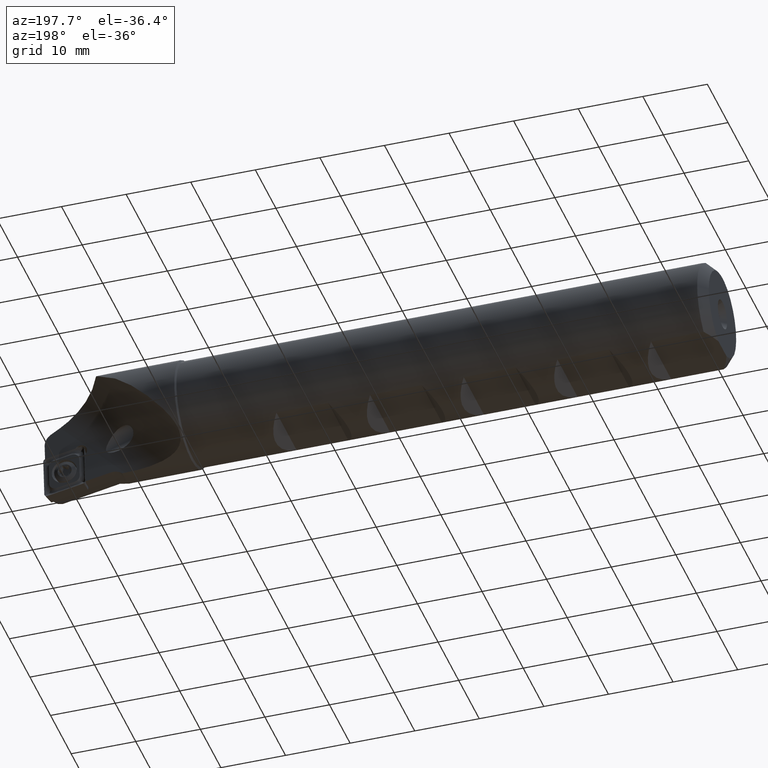
[diagram: clean part render]
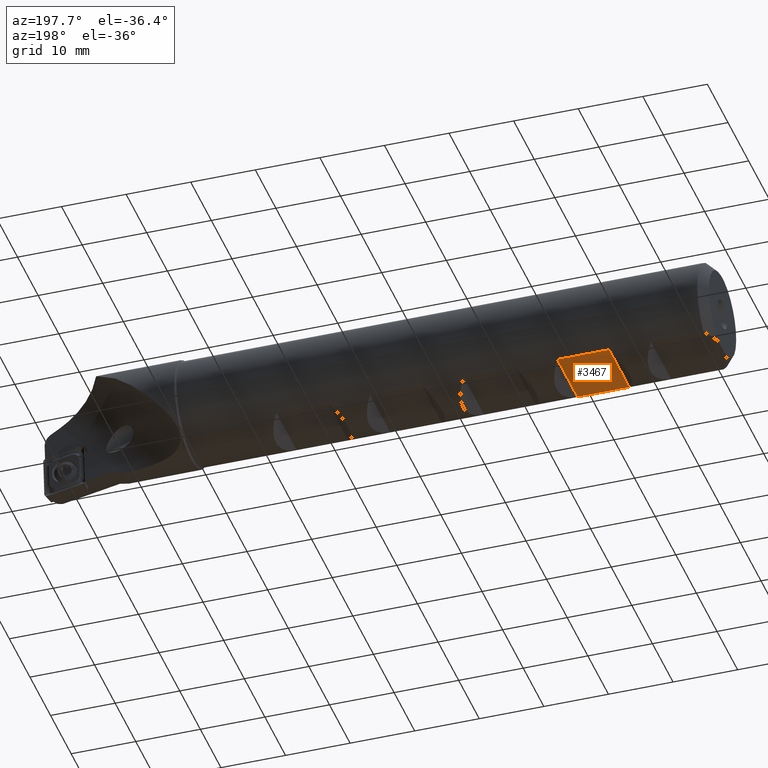
[diagram: same view with one face highlighted and labeled with its STEP entity id]
A machine part, auxiliary view. The second image highlights one B-rep face of the part: STEP entity #3467.
In plain terms, the highlighted planar face has unit normal (-0, 0, 1).
Its self-contained STEP definition (entity closure, byte-faithful):
#48 = ORIENTED_EDGE ( 'NONE', *, *, #1575, .T. ) ;
#260 = VECTOR ( 'NONE', #2888, 1000.000000000000000 ) ;
#298 = VERTEX_POINT ( 'NONE', #754 ) ;
#323 = AXIS2_PLACEMENT_3D ( 'NONE', #2296, #1727, #1995 ) ;
#391 = DIRECTION ( 'NONE',  ( -1.000000000000000000, -8.847089727481710000E-017, -5.551115123125779000E-017 ) ) ;
#659 = ORIENTED_EDGE ( 'NONE', *, *, #3224, .F. ) ;
#662 = VERTEX_POINT ( 'NONE', #3597 ) ;
#746 = EDGE_LOOP ( 'NONE', ( #659, #3399, #48, #1215 ) ) ;
#754 = CARTESIAN_POINT ( 'NONE',  ( 16.00000000000000700, 4.891942354525451900, -6.330000000000003600 ) ) ;
#869 = VECTOR ( 'NONE', #1548, 1000.000000000000000 ) ;
#941 = CARTESIAN_POINT ( 'NONE',  ( -3.175455607189916900, -4.891942354525453700, -6.329999999999999200 ) ) ;
#1020 = CARTESIAN_POINT ( 'NONE',  ( -3.175455607189903200, 4.891942354525449200, -6.330000000000004500 ) ) ;
#1165 = EDGE_CURVE ( 'NONE', #1286, #662, #1659, .T. ) ;
#1215 = ORIENTED_EDGE ( 'NONE', *, *, #3383, .F. ) ;
#1286 = VERTEX_POINT ( 'NONE', #3225 ) ;
#1413 = PLANE ( 'NONE',  #323 ) ;
#1548 = DIRECTION ( 'NONE',  ( 1.000000000000000000, 8.847089727481710000E-017, 5.551115123125779000E-017 ) ) ;
#1575 = EDGE_CURVE ( 'NONE', #1286, #298, #3480, .T. ) ;
#1656 = VERTEX_POINT ( 'NONE', #3145 ) ;
#1659 = LINE ( 'NONE', #941, #869 ) ;
#1704 = CARTESIAN_POINT ( 'NONE',  ( 16.00000000000000700, -10.00000000000000500, -6.330000000000003600 ) ) ;
#1727 = DIRECTION ( 'NONE',  ( -5.551115123125779000E-017, 1.951563910473906100E-017, 1.000000000000000000 ) ) ;
#1743 = VECTOR ( 'NONE', #391, 1000.000000000000000 ) ;
#1995 = DIRECTION ( 'NONE',  ( 1.000000000000000000, 8.847089727481710000E-017, 5.551115123125779000E-017 ) ) ;
#2296 = CARTESIAN_POINT ( 'NONE',  ( 16.00000000000000700, -10.00000000000000500, -6.330000000000003600 ) ) ;
#2791 = FACE_OUTER_BOUND ( 'NONE', #746, .T. ) ;
#2888 = DIRECTION ( 'NONE',  ( 9.367506770274752100E-017, 1.000000000000000000, -2.341876692568688000E-017 ) ) ;
#3139 = CARTESIAN_POINT ( 'NONE',  ( 24.00000000000001400, -10.00000000000000400, -6.330000000000001000 ) ) ;
#3145 = CARTESIAN_POINT ( 'NONE',  ( 24.00000000000001400, 4.891942354525452800, -6.329999999999998300 ) ) ;
#3159 = LINE ( 'NONE', #3139, #260 ) ;
#3224 = EDGE_CURVE ( 'NONE', #662, #1656, #3159, .T. ) ;
#3225 = CARTESIAN_POINT ( 'NONE',  ( 16.00000000000001800, -4.891942354525453700, -6.330000000000001000 ) ) ;
#3293 = LINE ( 'NONE', #1020, #1743 ) ;
#3348 = VECTOR ( 'NONE', #3742, 1000.000000000000000 ) ;
#3383 = EDGE_CURVE ( 'NONE', #1656, #298, #3293, .T. ) ;
#3399 = ORIENTED_EDGE ( 'NONE', *, *, #1165, .F. ) ;
#3467 = ADVANCED_FACE ( 'NONE', ( #2791 ), #1413, .F. ) ;
#3480 = LINE ( 'NONE', #1704, #3348 ) ;
#3597 = CARTESIAN_POINT ( 'NONE',  ( 24.00000000000002100, -4.891942354525449200, -6.330000000000003600 ) ) ;
#3742 = DIRECTION ( 'NONE',  ( 9.367506770274752100E-017, 1.000000000000000000, -2.341876692568688000E-017 ) ) ;